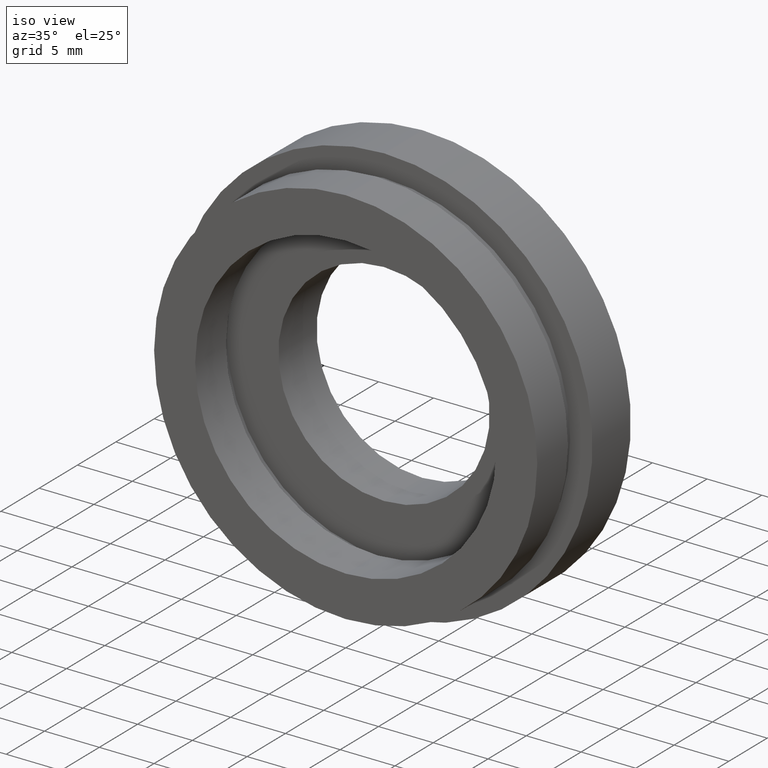
[diagram: clean part render]
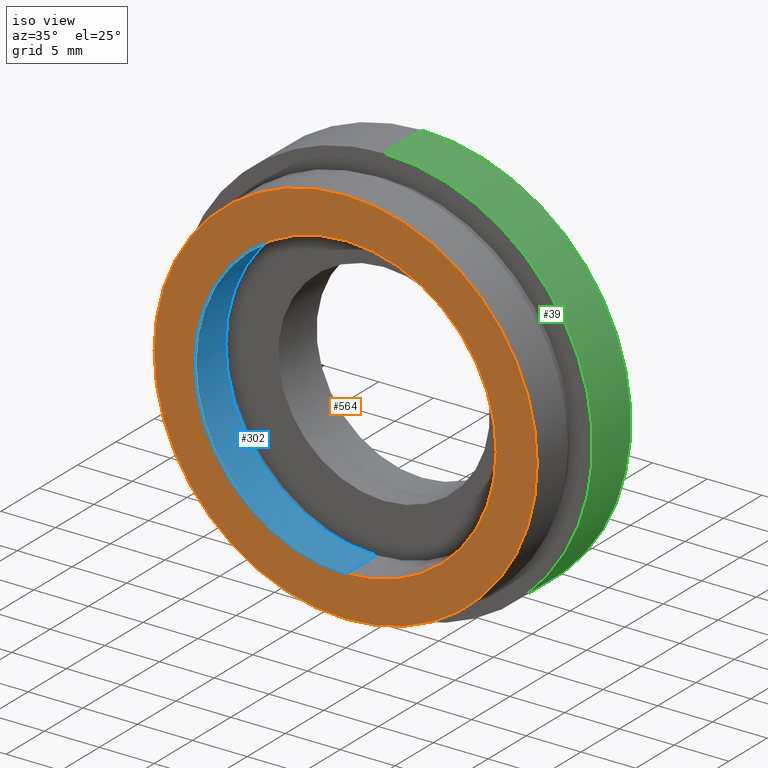
[diagram: same view with three faces highlighted in distinct colors, each labeled with its STEP entity id]
A machine part, iso view with three faces highlighted in distinct colors.
Their STEP definitions:

[orange] entity #564 — the highlighted planar face has unit normal (-0, 1, 0).
#36 = CARTESIAN_POINT ( 'NONE',  ( 0.0000000000000000000, 0.0000000000000000000, 0.0000000000000000000 ) ) ;
#44 = DIRECTION ( 'NONE',  ( -0.0000000000000000000, 1.000000000000000000, -0.0000000000000000000 ) ) ;
#69 = ORIENTED_EDGE ( 'NONE', *, *, #443, .T. ) ;
#88 = VERTEX_POINT ( 'NONE', #235 ) ;
#92 = EDGE_CURVE ( 'NONE', #88, #217, #517, .T. ) ;
#158 = DIRECTION ( 'NONE',  ( -0.0000000000000000000, 1.000000000000000000, 0.0000000000000000000 ) ) ;
#192 = DIRECTION ( 'NONE',  ( 0.0000000000000000000, 0.0000000000000000000, 1.000000000000000000 ) ) ;
#217 = VERTEX_POINT ( 'NONE', #509 ) ;
#231 = ORIENTED_EDGE ( 'NONE', *, *, #542, .T. ) ;
#235 = CARTESIAN_POINT ( 'NONE',  ( 2.143131898507868200E-015, 0.0000000000000000000, -17.50000000000000000 ) ) ;
#236 = CIRCLE ( 'NONE', #614, 13.75000000000000000 ) ;
#240 = DIRECTION ( 'NONE',  ( 0.0000000000000000000, 0.0000000000000000000, 1.000000000000000000 ) ) ;
#261 = CARTESIAN_POINT ( 'NONE',  ( 17.50000000000000000, -4.439344646909156000E-016, 0.0000000000000000000 ) ) ;
#278 = ORIENTED_EDGE ( 'NONE', *, *, #465, .F. ) ;
#286 = FACE_BOUND ( 'NONE', #459, .T. ) ;
#290 = DIRECTION ( 'NONE',  ( -0.0000000000000000000, 1.000000000000000000, -0.0000000000000000000 ) ) ;
#296 = CARTESIAN_POINT ( 'NONE',  ( 0.0000000000000000000, -1.734723475976807100E-015, 13.75000000000000000 ) ) ;
#312 = PLANE ( 'NONE',  #315 ) ;
#314 = CIRCLE ( 'NONE', #438, 13.75000000000000000 ) ;
#315 = AXIS2_PLACEMENT_3D ( 'NONE', #261, #158, #240 ) ;
#360 = CIRCLE ( 'NONE', #566, 17.50000000000000000 ) ;
#384 = DIRECTION ( 'NONE',  ( -0.0000000000000000000, 1.000000000000000000, -0.0000000000000000000 ) ) ;
#393 = EDGE_LOOP ( 'NONE', ( #278, #491 ) ) ;
#408 = CARTESIAN_POINT ( 'NONE',  ( 0.0000000000000000000, 0.0000000000000000000, 0.0000000000000000000 ) ) ;
#434 = CARTESIAN_POINT ( 'NONE',  ( 0.0000000000000000000, -1.734723475976807100E-015, 0.0000000000000000000 ) ) ;
#438 = AXIS2_PLACEMENT_3D ( 'NONE', #516, #290, #563 ) ;
#443 = EDGE_CURVE ( 'NONE', #500, #489, #236, .T. ) ;
#459 = EDGE_LOOP ( 'NONE', ( #231, #69 ) ) ;
#465 = EDGE_CURVE ( 'NONE', #217, #88, #360, .T. ) ;
#473 = AXIS2_PLACEMENT_3D ( 'NONE', #36, #384, #559 ) ;
#489 = VERTEX_POINT ( 'NONE', #296 ) ;
#491 = ORIENTED_EDGE ( 'NONE', *, *, #92, .F. ) ;
#500 = VERTEX_POINT ( 'NONE', #618 ) ;
#509 = CARTESIAN_POINT ( 'NONE',  ( 0.0000000000000000000, 0.0000000000000000000, 17.50000000000000000 ) ) ;
#516 = CARTESIAN_POINT ( 'NONE',  ( 0.0000000000000000000, -1.734723475976807100E-015, 0.0000000000000000000 ) ) ;
#517 = CIRCLE ( 'NONE', #473, 17.50000000000000000 ) ;
#542 = EDGE_CURVE ( 'NONE', #489, #500, #314, .T. ) ;
#548 = DIRECTION ( 'NONE',  ( 0.0000000000000000000, 0.0000000000000000000, 1.000000000000000000 ) ) ;
#549 = DIRECTION ( 'NONE',  ( -0.0000000000000000000, 1.000000000000000000, -0.0000000000000000000 ) ) ;
#559 = DIRECTION ( 'NONE',  ( 0.0000000000000000000, 0.0000000000000000000, 1.000000000000000000 ) ) ;
#563 = DIRECTION ( 'NONE',  ( 0.0000000000000000000, 0.0000000000000000000, 1.000000000000000000 ) ) ;
#564 = ADVANCED_FACE ( 'NONE', ( #573, #286 ), #312, .F. ) ;
#566 = AXIS2_PLACEMENT_3D ( 'NONE', #408, #549, #548 ) ;
#573 = FACE_OUTER_BOUND ( 'NONE', #393, .T. ) ;
#614 = AXIS2_PLACEMENT_3D ( 'NONE', #434, #44, #192 ) ;
#618 = CARTESIAN_POINT ( 'NONE',  ( 1.683889348827610900E-015, -1.734723475976807100E-015, -13.75000000000000000 ) ) ;

[blue] entity #302 — the highlighted cylindrical surface (partial cylindrical patch) has radius 13.75 mm, axis along (-0, 1, -0).
#5 = DIRECTION ( 'NONE',  ( -0.0000000000000000000, 1.000000000000000000, -0.0000000000000000000 ) ) ;
#15 = CYLINDRICAL_SURFACE ( 'NONE', #66, 13.75000000000000200 ) ;
#44 = DIRECTION ( 'NONE',  ( -0.0000000000000000000, 1.000000000000000000, -0.0000000000000000000 ) ) ;
#59 = ORIENTED_EDGE ( 'NONE', *, *, #421, .T. ) ;
#60 = CARTESIAN_POINT ( 'NONE',  ( 0.0000000000000000000, 13.74468085106383300, 13.75000000000000200 ) ) ;
#63 = FACE_OUTER_BOUND ( 'NONE', #458, .T. ) ;
#66 = AXIS2_PLACEMENT_3D ( 'NONE', #570, #483, #272 ) ;
#78 = CARTESIAN_POINT ( 'NONE',  ( 1.683889348827611000E-015, 13.74468085106383300, -13.75000000000000200 ) ) ;
#169 = DIRECTION ( 'NONE',  ( -0.0000000000000000000, 1.000000000000000000, -0.0000000000000000000 ) ) ;
#192 = DIRECTION ( 'NONE',  ( 0.0000000000000000000, 0.0000000000000000000, 1.000000000000000000 ) ) ;
#205 = LINE ( 'NONE', #78, #448 ) ;
#224 = EDGE_CURVE ( 'NONE', #253, #283, #353, .T. ) ;
#229 = LINE ( 'NONE', #60, #321 ) ;
#236 = CIRCLE ( 'NONE', #614, 13.75000000000000000 ) ;
#251 = ORIENTED_EDGE ( 'NONE', *, *, #479, .F. ) ;
#252 = CARTESIAN_POINT ( 'NONE',  ( 0.0000000000000000000, 4.000000000000000000, 0.0000000000000000000 ) ) ;
#253 = VERTEX_POINT ( 'NONE', #596 ) ;
#272 = DIRECTION ( 'NONE',  ( 0.0000000000000000000, 0.0000000000000000000, 1.000000000000000000 ) ) ;
#283 = VERTEX_POINT ( 'NONE', #334 ) ;
#296 = CARTESIAN_POINT ( 'NONE',  ( 0.0000000000000000000, -1.734723475976807100E-015, 13.75000000000000000 ) ) ;
#302 = ADVANCED_FACE ( 'NONE', ( #63 ), #15, .F. ) ;
#310 = ORIENTED_EDGE ( 'NONE', *, *, #224, .T. ) ;
#321 = VECTOR ( 'NONE', #359, 1000.000000000000000 ) ;
#334 = CARTESIAN_POINT ( 'NONE',  ( 0.0000000000000000000, 4.000000000000000000, 13.75000000000000200 ) ) ;
#346 = AXIS2_PLACEMENT_3D ( 'NONE', #252, #169, #488 ) ;
#353 = CIRCLE ( 'NONE', #346, 13.75000000000000200 ) ;
#359 = DIRECTION ( 'NONE',  ( -0.0000000000000000000, 1.000000000000000000, -0.0000000000000000000 ) ) ;
#421 = EDGE_CURVE ( 'NONE', #500, #253, #205, .T. ) ;
#434 = CARTESIAN_POINT ( 'NONE',  ( 0.0000000000000000000, -1.734723475976807100E-015, 0.0000000000000000000 ) ) ;
#443 = EDGE_CURVE ( 'NONE', #500, #489, #236, .T. ) ;
#448 = VECTOR ( 'NONE', #5, 1000.000000000000000 ) ;
#458 = EDGE_LOOP ( 'NONE', ( #617, #59, #310, #251 ) ) ;
#479 = EDGE_CURVE ( 'NONE', #489, #283, #229, .T. ) ;
#483 = DIRECTION ( 'NONE',  ( -0.0000000000000000000, 1.000000000000000000, -0.0000000000000000000 ) ) ;
#488 = DIRECTION ( 'NONE',  ( 0.0000000000000000000, 0.0000000000000000000, 1.000000000000000000 ) ) ;
#489 = VERTEX_POINT ( 'NONE', #296 ) ;
#500 = VERTEX_POINT ( 'NONE', #618 ) ;
#570 = CARTESIAN_POINT ( 'NONE',  ( 0.0000000000000000000, 13.74468085106383300, 0.0000000000000000000 ) ) ;
#596 = CARTESIAN_POINT ( 'NONE',  ( 1.683889348827611000E-015, 4.000000000000000000, -13.75000000000000200 ) ) ;
#614 = AXIS2_PLACEMENT_3D ( 'NONE', #434, #44, #192 ) ;
#617 = ORIENTED_EDGE ( 'NONE', *, *, #443, .F. ) ;
#618 = CARTESIAN_POINT ( 'NONE',  ( 1.683889348827610900E-015, -1.734723475976807100E-015, -13.75000000000000000 ) ) ;

[green] entity #39 — the highlighted cylindrical surface (partial cylindrical patch) has radius 19.05 mm, axis along (-0, 1, -0).
#8 = AXIS2_PLACEMENT_3D ( 'NONE', #374, #583, #230 ) ;
#35 = EDGE_CURVE ( 'NONE', #97, #594, #226, .T. ) ;
#39 = ADVANCED_FACE ( 'NONE', ( #170 ), #121, .T. ) ;
#43 = CARTESIAN_POINT ( 'NONE',  ( 0.0000000000000000000, 5.000000000000000900, 0.0000000000000000000 ) ) ;
#55 = VECTOR ( 'NONE', #86, 1000.000000000000000 ) ;
#65 = ORIENTED_EDGE ( 'NONE', *, *, #72, .T. ) ;
#70 = CARTESIAN_POINT ( 'NONE',  ( 0.0000000000000000000, 13.74468085106383300, 19.05000000000000400 ) ) ;
#72 = EDGE_CURVE ( 'NONE', #97, #117, #603, .T. ) ;
#73 = ORIENTED_EDGE ( 'NONE', *, *, #35, .F. ) ;
#86 = DIRECTION ( 'NONE',  ( -0.0000000000000000000, 1.000000000000000000, -0.0000000000000000000 ) ) ;
#97 = VERTEX_POINT ( 'NONE', #136 ) ;
#110 = EDGE_CURVE ( 'NONE', #117, #467, #270, .T. ) ;
#117 = VERTEX_POINT ( 'NONE', #138 ) ;
#121 = CYLINDRICAL_SURFACE ( 'NONE', #348, 19.05000000000000400 ) ;
#127 = AXIS2_PLACEMENT_3D ( 'NONE', #43, #297, #568 ) ;
#128 = DIRECTION ( 'NONE',  ( -0.0000000000000000000, 1.000000000000000000, -0.0000000000000000000 ) ) ;
#136 = CARTESIAN_POINT ( 'NONE',  ( 0.0000000000000000000, 5.000000000000000900, 19.05000000000000400 ) ) ;
#138 = CARTESIAN_POINT ( 'NONE',  ( 2.332952152375708400E-015, 5.000000000000000900, -19.05000000000000400 ) ) ;
#140 = CIRCLE ( 'NONE', #8, 19.05000000000000400 ) ;
#142 = DIRECTION ( 'NONE',  ( 0.0000000000000000000, 0.0000000000000000000, 1.000000000000000000 ) ) ;
#146 = EDGE_CURVE ( 'NONE', #594, #467, #140, .T. ) ;
#170 = FACE_OUTER_BOUND ( 'NONE', #540, .T. ) ;
#173 = ORIENTED_EDGE ( 'NONE', *, *, #146, .F. ) ;
#226 = LINE ( 'NONE', #70, #55 ) ;
#230 = DIRECTION ( 'NONE',  ( 0.0000000000000000000, 0.0000000000000000000, 1.000000000000000000 ) ) ;
#270 = LINE ( 'NONE', #606, #469 ) ;
#297 = DIRECTION ( 'NONE',  ( -0.0000000000000000000, 1.000000000000000000, -0.0000000000000000000 ) ) ;
#348 = AXIS2_PLACEMENT_3D ( 'NONE', #561, #412, #142 ) ;
#374 = CARTESIAN_POINT ( 'NONE',  ( 0.0000000000000000000, 9.999999999999998200, 0.0000000000000000000 ) ) ;
#379 = ORIENTED_EDGE ( 'NONE', *, *, #110, .T. ) ;
#380 = CARTESIAN_POINT ( 'NONE',  ( 2.332952152375708400E-015, 9.999999999999998200, -19.05000000000000400 ) ) ;
#412 = DIRECTION ( 'NONE',  ( -0.0000000000000000000, 1.000000000000000000, -0.0000000000000000000 ) ) ;
#444 = CARTESIAN_POINT ( 'NONE',  ( 0.0000000000000000000, 9.999999999999998200, 19.05000000000000400 ) ) ;
#467 = VERTEX_POINT ( 'NONE', #380 ) ;
#469 = VECTOR ( 'NONE', #128, 1000.000000000000000 ) ;
#540 = EDGE_LOOP ( 'NONE', ( #65, #379, #173, #73 ) ) ;
#561 = CARTESIAN_POINT ( 'NONE',  ( 0.0000000000000000000, 13.74468085106383300, 0.0000000000000000000 ) ) ;
#568 = DIRECTION ( 'NONE',  ( 0.0000000000000000000, 0.0000000000000000000, 1.000000000000000000 ) ) ;
#583 = DIRECTION ( 'NONE',  ( -0.0000000000000000000, 1.000000000000000000, -0.0000000000000000000 ) ) ;
#594 = VERTEX_POINT ( 'NONE', #444 ) ;
#603 = CIRCLE ( 'NONE', #127, 19.05000000000000400 ) ;
#606 = CARTESIAN_POINT ( 'NONE',  ( 2.332952152375708400E-015, 13.74468085106383300, -19.05000000000000400 ) ) ;